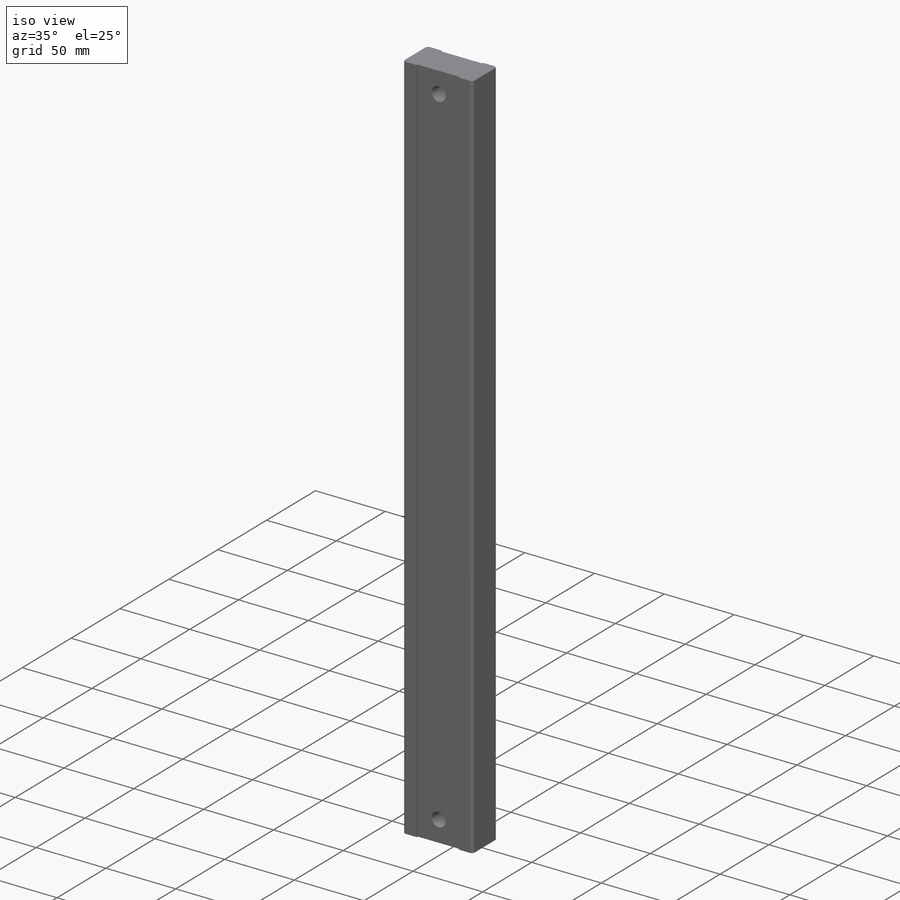
[diagram: iso view]
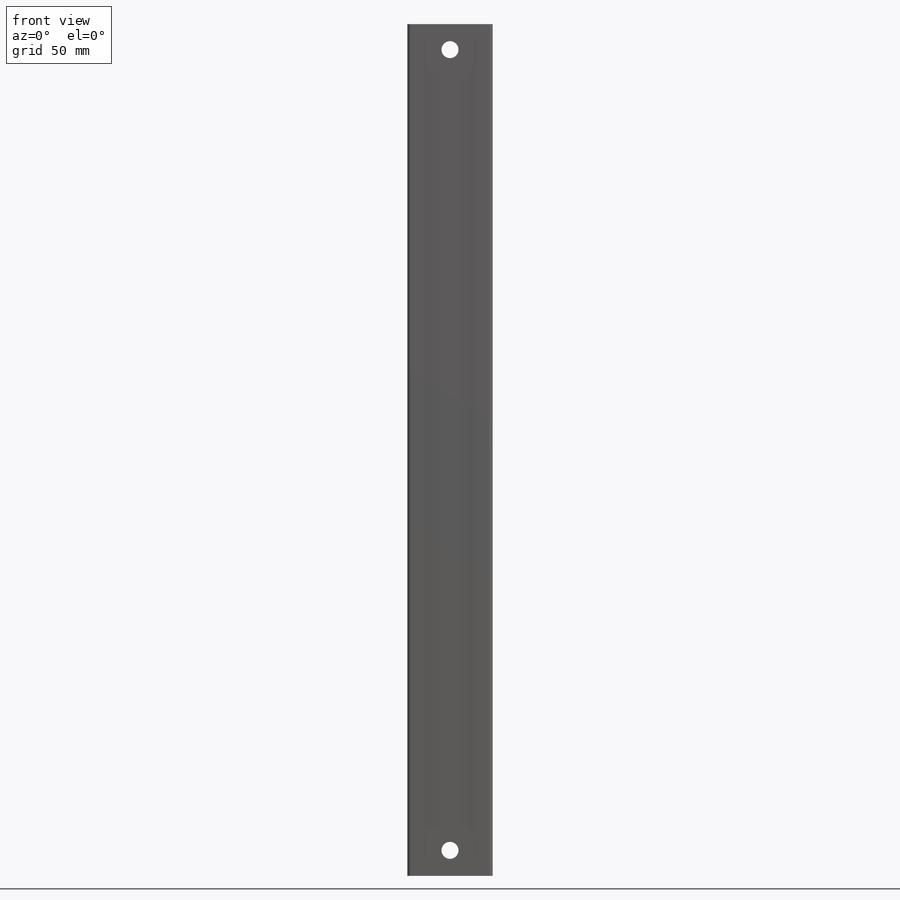
[diagram: front view]
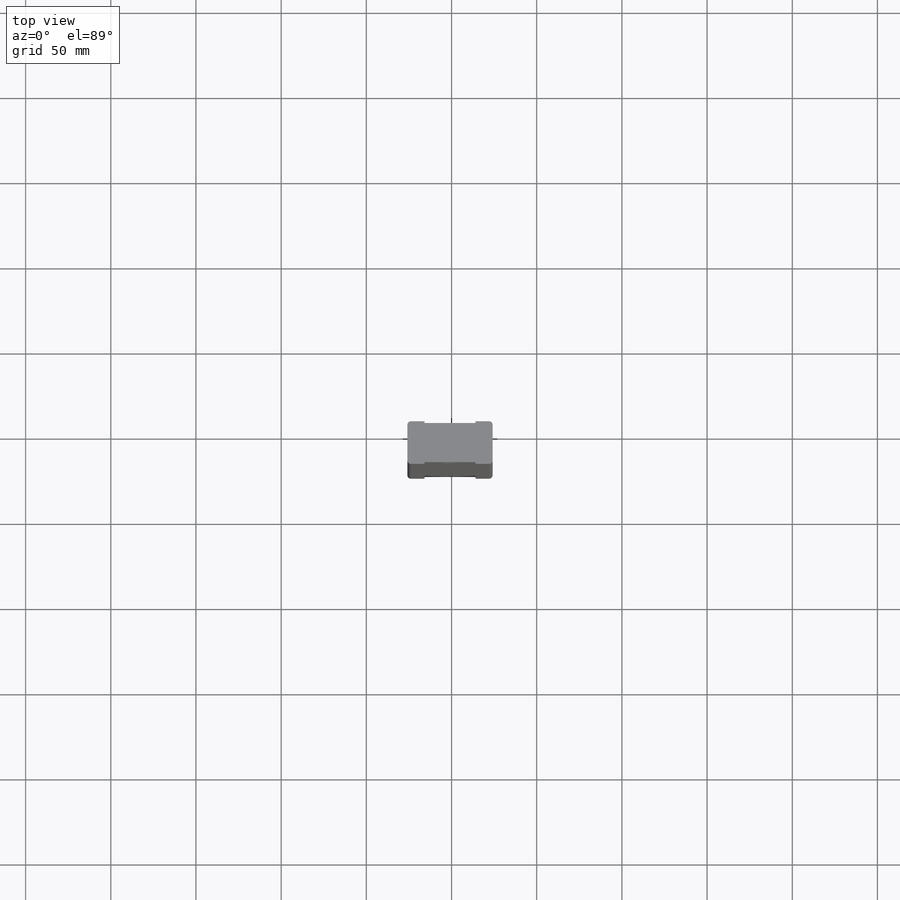
[diagram: top view]
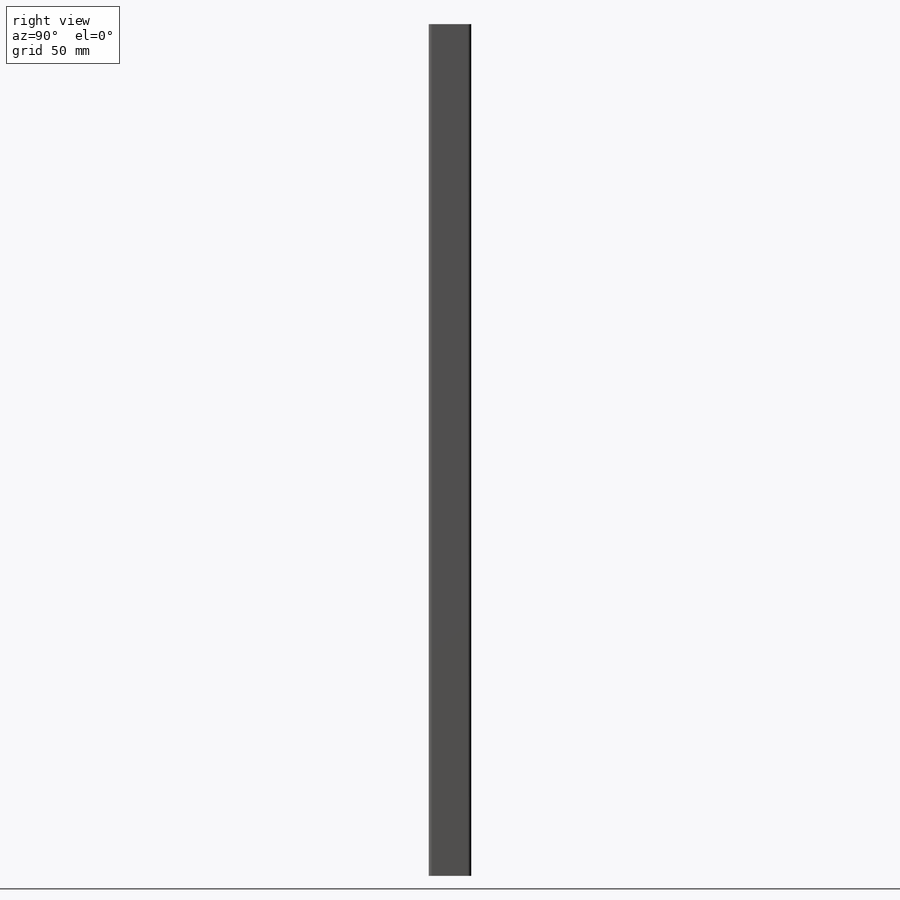
[diagram: right view]
SOLIDWORKS PART (.sldprt)
format: sldprt  version: not decoded by parser v0  size: 177,152 bytes
history: native  units: mm
features: sketch x5, plane x2, material x1, extrude x1, cut_extrude x1, hole x1 (+12 scaffold rows collapsed)
feature tree (23):
  scaffold x12  (default folders/planes/origin — collapsed)
  material  "Material <not specified>"
  sketch  "Sketch1"  dims[D1=30.0mm D2=21.0mm]
  extrude  "Boss-Extrude1"  Depth=500mm
  plane  "Plane1"  Offset=0mm
  sketch  "Sketch3"  dims[D1=1.0mm D2=1.0mm D3=10.0mm D4=10.0mm D5=10.0mm D6=10.0mm]
  cut_extrude  "Cut-Extrude1"  Depth=500mm
  plane  "Plane2"  Offset=0mm
  sketch  "Sketch4"  dims[D1=15.0mm D2=25.0mm D3=15.0mm D4=25.0mm D5=460.0mm]
  hole  "M10x1.0 Tapped Hole1"  Diameter=9mm Depth=51.26mm
  sketch  "3DSketch1"
  sketch  "Sketch5"  dims[hole-wizard template sketch: 29 standard entries collapsed; hole parameters kept: c8.Tap Drill Depth=51.26mm c8.Thread Major Dia.=10.0mm c8.Thread Depth=45.4mm c8.D5=~14.816244mm c8.Drill Angle=118.0deg]
decode coverage: 7 of 8 modeling features carry decoded parameters
note: ~ marks probable driven/reference dimensions
note: suppression state not decoded; provenance and decode notes live in map.json
